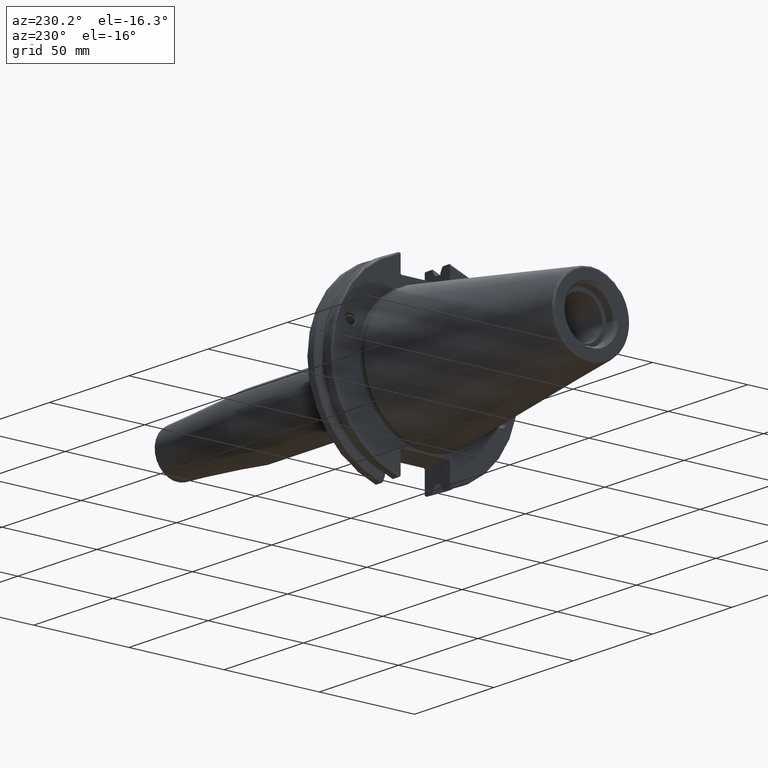
[diagram: clean part render]
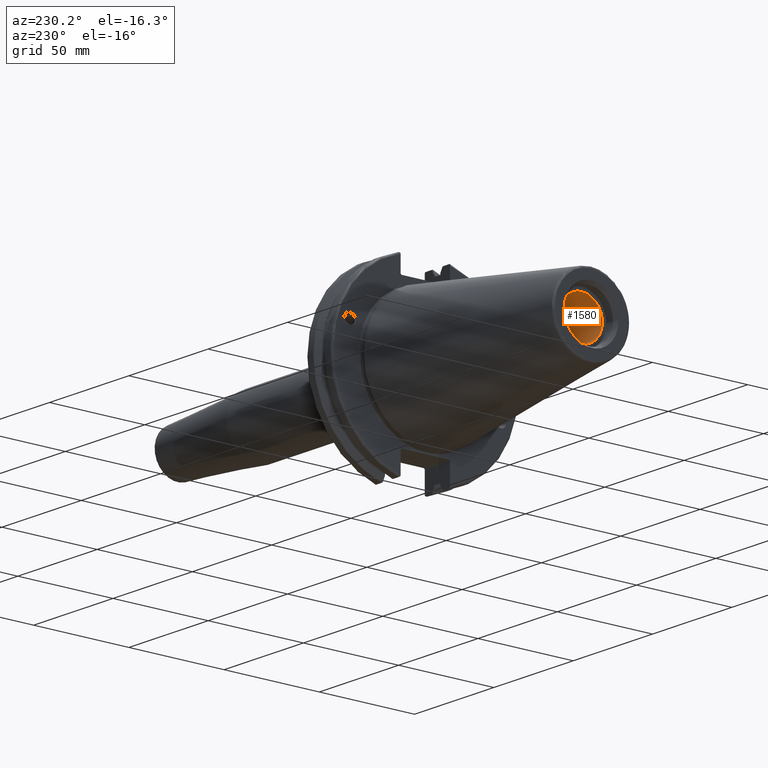
[diagram: same view with one face highlighted and labeled with its STEP entity id]
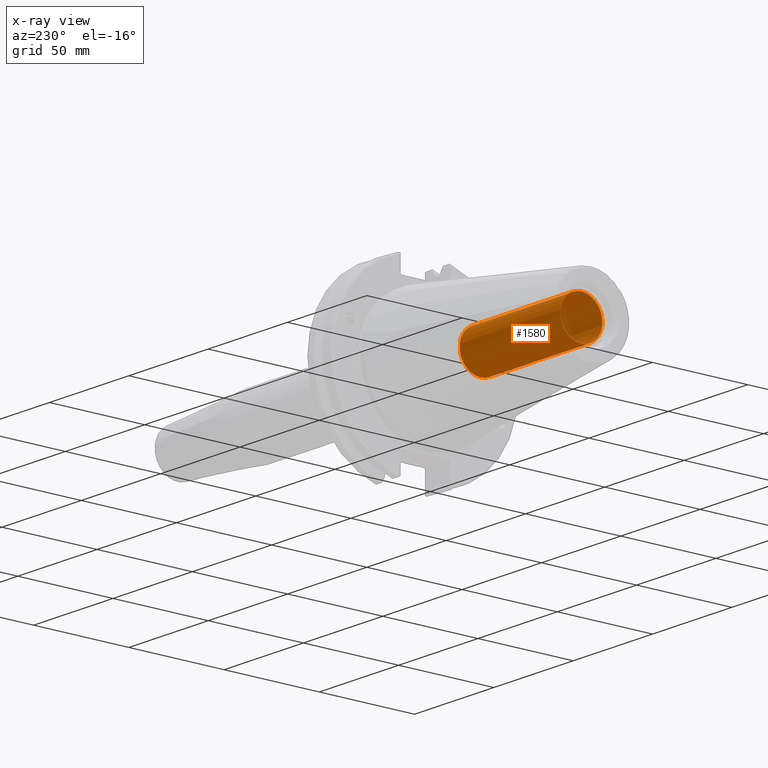
[diagram: x-ray of the same camera — body ghosted, the highlighted face saturated]
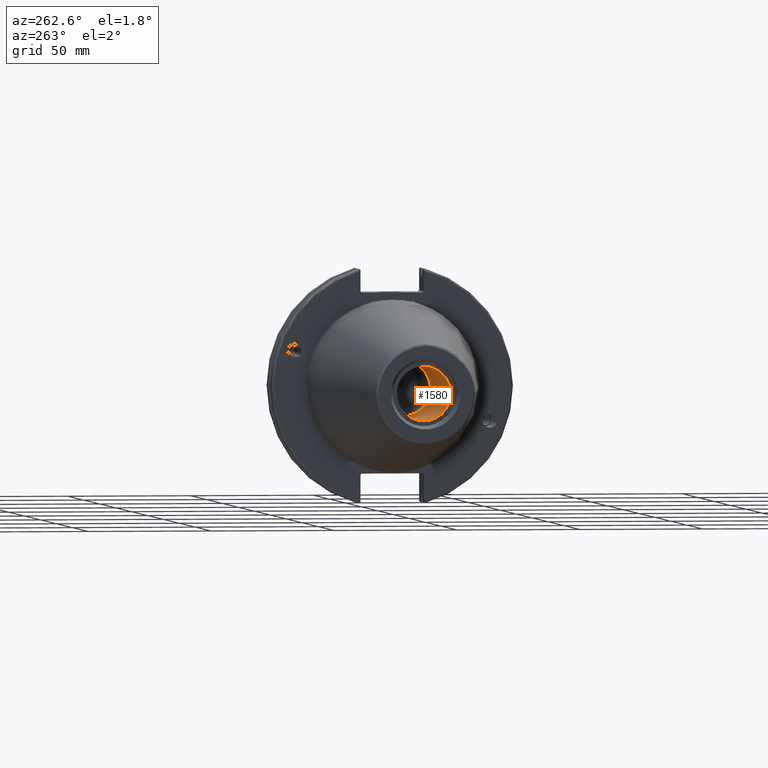
[diagram: same view with one face highlighted and labeled with its STEP entity id]
A machine part, auxiliary view. The second image highlights one B-rep face of the part: STEP entity #1580.
The next image is the same camera in x-ray: the body ghosted, the highlighted face saturated — about 2% of this face is hidden behind the body in this view.
A second angle (auxiliary view) of the same face is appended — the face is thin or edge-on in the first view.
In plain terms, the highlighted cylindrical surface (bore or boss wall) has radius 10.9855 mm, axis along (-1, 0, 0).
Its self-contained STEP definition (entity closure, byte-faithful):
#135=LINE('',#2922,#233);
#233=VECTOR('',#2080,10.9855);
#301=CYLINDRICAL_SURFACE('',#1749,10.9855);
#419=FACE_OUTER_BOUND('',#527,.T.);
#527=EDGE_LOOP('',(#1278,#1279,#1280,#1281));
#629=CIRCLE('',#1748,10.9855);
#630=CIRCLE('',#1750,10.9855);
#760=VERTEX_POINT('',#2916);
#761=VERTEX_POINT('',#2920);
#950=EDGE_CURVE('',#760,#760,#629,.T.);
#952=EDGE_CURVE('',#761,#761,#630,.T.);
#953=EDGE_CURVE('',#761,#760,#135,.T.);
#1278=ORIENTED_EDGE('',*,*,#952,.F.);
#1279=ORIENTED_EDGE('',*,*,#953,.T.);
#1280=ORIENTED_EDGE('',*,*,#950,.F.);
#1281=ORIENTED_EDGE('',*,*,#953,.F.);
#1580=ADVANCED_FACE('',(#419),#301,.F.);
#1748=AXIS2_PLACEMENT_3D('',#2917,#2073,#2074);
#1749=AXIS2_PLACEMENT_3D('',#2919,#2076,#2077);
#1750=AXIS2_PLACEMENT_3D('',#2921,#2078,#2079);
#2073=DIRECTION('center_axis',(-1.,0.,0.));
#2074=DIRECTION('ref_axis',(0.,0.,1.));
#2076=DIRECTION('center_axis',(-1.,0.,0.));
#2077=DIRECTION('ref_axis',(0.,0.,1.));
#2078=DIRECTION('center_axis',(1.,0.,0.));
#2079=DIRECTION('ref_axis',(0.,0.,1.));
#2080=DIRECTION('',(1.,0.,0.));
#2916=CARTESIAN_POINT('',(-31.6,-1.34533574120333E-15,-10.9855));
#2917=CARTESIAN_POINT('Origin',(-31.6,0.,0.));
#2919=CARTESIAN_POINT('Origin',(-66.6,0.,0.));
#2920=CARTESIAN_POINT('',(-95.25,1.34533574120333E-15,-10.9855));
#2921=CARTESIAN_POINT('Origin',(-95.25,0.,0.));
#2922=CARTESIAN_POINT('',(-66.6,-1.34533574120333E-15,-10.9855));